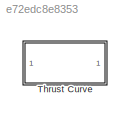
MODEL slx_e72edc8e8353
KIND library
CONFIG AbsTol = auto
CONFIG EnableMultiTasking = off
CONFIG FixedStep = auto
CONFIG MaxStep = auto
CONFIG MinStep = auto
CONFIG RelTol = 1e-3
CONFIG SampleTimeConstraint = Unconstrained
CONFIG Solver = VariableStepAuto
CONFIG SolverName = VariableStepAuto
CONFIG StartTime = 0.0
CONFIG StopTime = 10.0
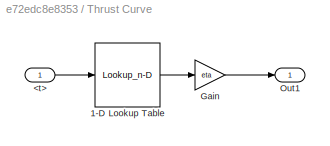
BLOCK [SubSystem] Thrust Curve 
  Ports = [1, 1]
  RequestExecContextInheritance = off
BLOCK [Lookup_n-D] Thrust Curve /1-D Lookup Table
  BreakpointsForDimension1 = T_b
  InternalRulePriority = Speed
  NumberOfTableDimensions = 1
  Ports = [1, 1]
  RndMeth = Simplest
  Table = F_th
BLOCK [Inport] Thrust Curve /<t>
BLOCK [Gain] Thrust Curve /Gain
  Gain = eta
BLOCK [Outport] Thrust Curve /Out1
  VectorParamsAs1DForOutWhenUnconnected = off
LINE Thrust Curve /1-D Lookup Table:1 -> Thrust Curve /Gain:1
LINE Thrust Curve /<t>:1 -> Thrust Curve /1-D Lookup Table:1
LINE Thrust Curve /Gain:1 -> Thrust Curve /Out1:1
